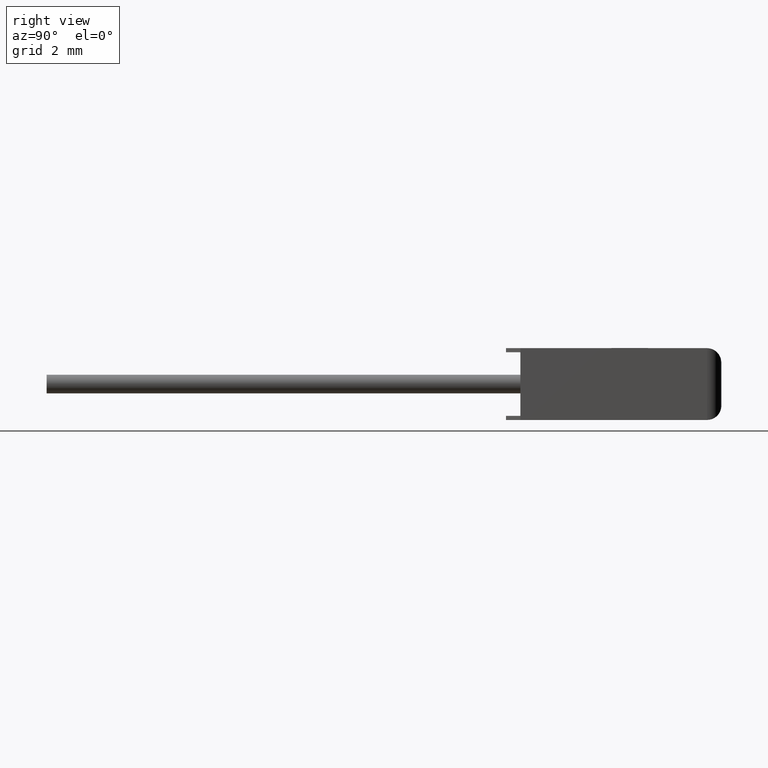
[diagram: clean part render]
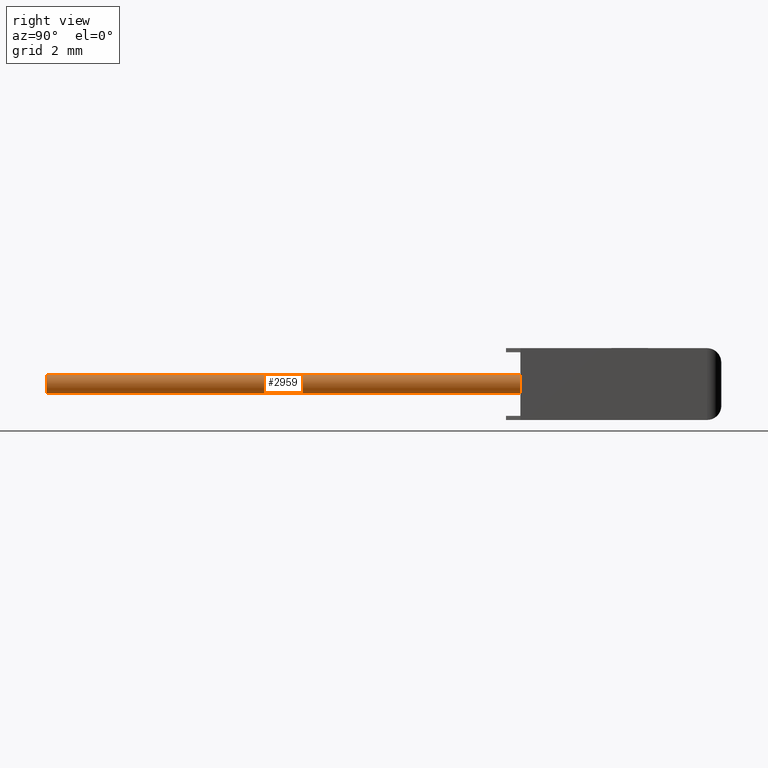
[diagram: same view with one face highlighted and labeled with its STEP entity id]
A machine part, right view. The second image highlights one B-rep face of the part: STEP entity #2959.
In plain terms, the highlighted cylindrical surface (edge-blend (fillet) strip) has radius 0.325 mm, axis along (-0, 1, -0).
Its self-contained STEP definition (entity closure, byte-faithful):
#170 = LINE ( 'NONE', #418, #583 ) ;
#303 = FACE_OUTER_BOUND ( 'NONE', #2479, .T. ) ;
#418 = CARTESIAN_POINT ( 'NONE',  ( 8.500000000000000000, -16.50000000000000000, 0.9249999999999998200 ) ) ;
#447 = EDGE_CURVE ( 'NONE', #1065, #3030, #2156, .T. ) ;
#495 = CARTESIAN_POINT ( 'NONE',  ( 8.500000000000000000, -16.50000000000000000, 1.249999999999999800 ) ) ;
#527 = DIRECTION ( 'NONE',  ( 0.0000000000000000000, 0.0000000000000000000, 1.000000000000000000 ) ) ;
#572 = CIRCLE ( 'NONE', #2473, 0.3250000000000000100 ) ;
#583 = VECTOR ( 'NONE', #962, 1000.000000000000000 ) ;
#624 = VECTOR ( 'NONE', #1699, 1000.000000000000000 ) ;
#651 = ORIENTED_EDGE ( 'NONE', *, *, #447, .T. ) ;
#662 = EDGE_CURVE ( 'NONE', #1065, #778, #3078, .T. ) ;
#679 = EDGE_CURVE ( 'NONE', #3030, #2604, #170, .T. ) ;
#702 = ORIENTED_EDGE ( 'NONE', *, *, #2401, .F. ) ;
#705 = AXIS2_PLACEMENT_3D ( 'NONE', #1048, #2820, #1617 ) ;
#734 = DIRECTION ( 'NONE',  ( 0.0000000000000000000, 0.0000000000000000000, -1.000000000000000000 ) ) ;
#778 = VERTEX_POINT ( 'NONE', #1459 ) ;
#857 = AXIS2_PLACEMENT_3D ( 'NONE', #495, #1490, #527 ) ;
#870 = CARTESIAN_POINT ( 'NONE',  ( 8.500000000000000000, -16.50000000000000000, 1.574999999999999700 ) ) ;
#890 = ORIENTED_EDGE ( 'NONE', *, *, #662, .F. ) ;
#962 = DIRECTION ( 'NONE',  ( -0.0000000000000000000, 1.000000000000000000, -0.0000000000000000000 ) ) ;
#1048 = CARTESIAN_POINT ( 'NONE',  ( 8.500000000000000000, -16.50000000000000000, 1.249999999999999800 ) ) ;
#1065 = VERTEX_POINT ( 'NONE', #870 ) ;
#1169 = CARTESIAN_POINT ( 'NONE',  ( 8.500000000000000000, 0.0000000000000000000, 1.249999999999999800 ) ) ;
#1194 = DIRECTION ( 'NONE',  ( -0.0000000000000000000, 1.000000000000000000, -0.0000000000000000000 ) ) ;
#1459 = CARTESIAN_POINT ( 'NONE',  ( 8.500000000000000000, 0.0000000000000000000, 1.574999999999999700 ) ) ;
#1490 = DIRECTION ( 'NONE',  ( -0.0000000000000000000, 1.000000000000000000, -0.0000000000000000000 ) ) ;
#1586 = CARTESIAN_POINT ( 'NONE',  ( 8.500000000000000000, -16.50000000000000000, 0.9249999999999998200 ) ) ;
#1617 = DIRECTION ( 'NONE',  ( 0.0000000000000000000, 0.0000000000000000000, -1.000000000000000000 ) ) ;
#1699 = DIRECTION ( 'NONE',  ( -0.0000000000000000000, 1.000000000000000000, -0.0000000000000000000 ) ) ;
#1897 = CARTESIAN_POINT ( 'NONE',  ( 8.500000000000000000, 0.0000000000000000000, 0.9249999999999998200 ) ) ;
#2037 = ORIENTED_EDGE ( 'NONE', *, *, #679, .T. ) ;
#2156 = CIRCLE ( 'NONE', #705, 0.3250000000000000100 ) ;
#2401 = EDGE_CURVE ( 'NONE', #778, #2604, #572, .T. ) ;
#2473 = AXIS2_PLACEMENT_3D ( 'NONE', #1169, #1194, #734 ) ;
#2479 = EDGE_LOOP ( 'NONE', ( #651, #2037, #702, #890 ) ) ;
#2604 = VERTEX_POINT ( 'NONE', #1897 ) ;
#2737 = CYLINDRICAL_SURFACE ( 'NONE', #857, 0.3250000000000000100 ) ;
#2820 = DIRECTION ( 'NONE',  ( -0.0000000000000000000, 1.000000000000000000, -0.0000000000000000000 ) ) ;
#2959 = ADVANCED_FACE ( 'NONE', ( #303 ), #2737, .T. ) ;
#3030 = VERTEX_POINT ( 'NONE', #1586 ) ;
#3078 = LINE ( 'NONE', #3208, #624 ) ;
#3208 = CARTESIAN_POINT ( 'NONE',  ( 8.500000000000000000, -16.50000000000000000, 1.574999999999999700 ) ) ;